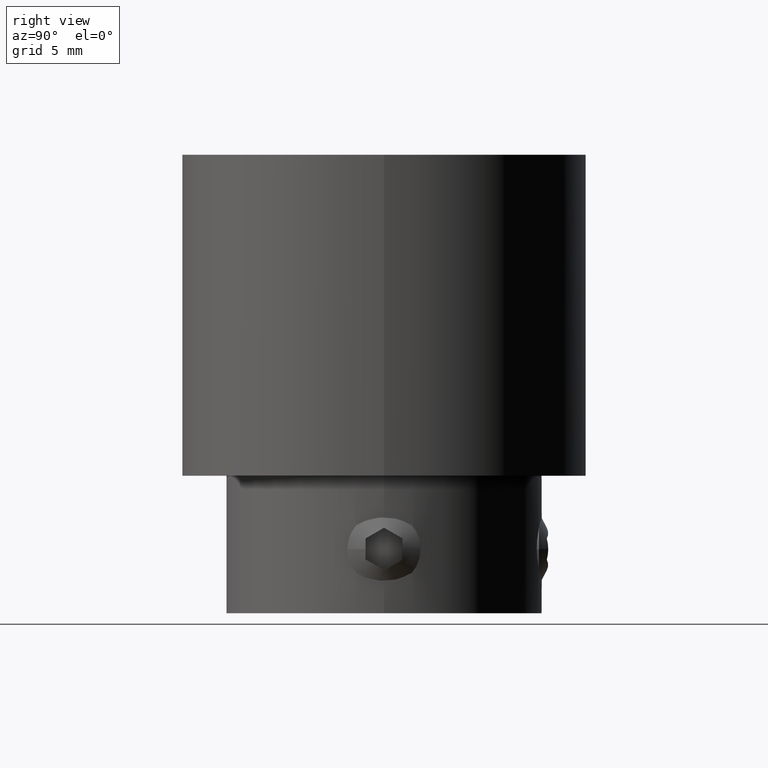
[diagram: clean part render]
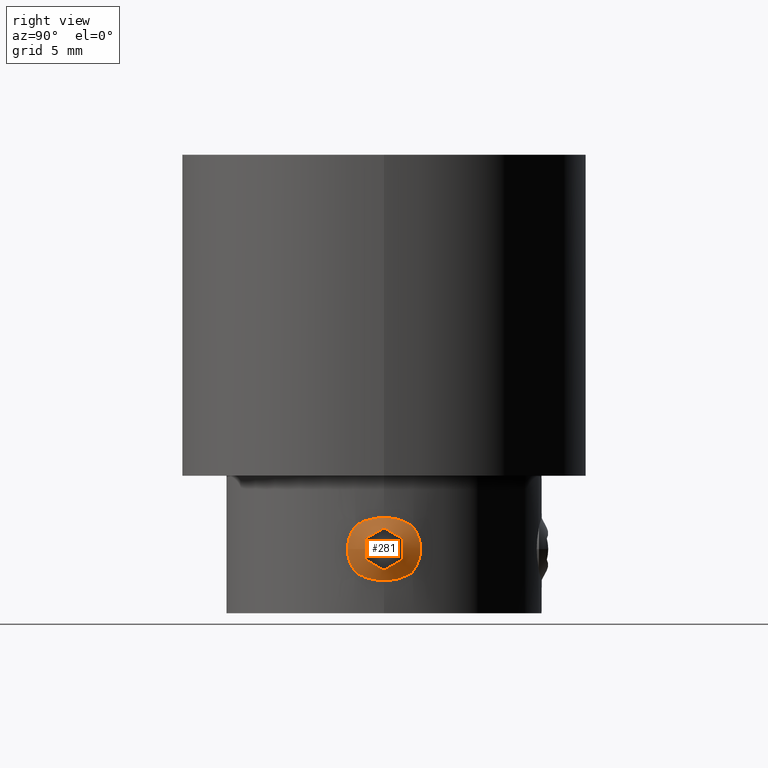
[diagram: same view with one face highlighted and labeled with its STEP entity id]
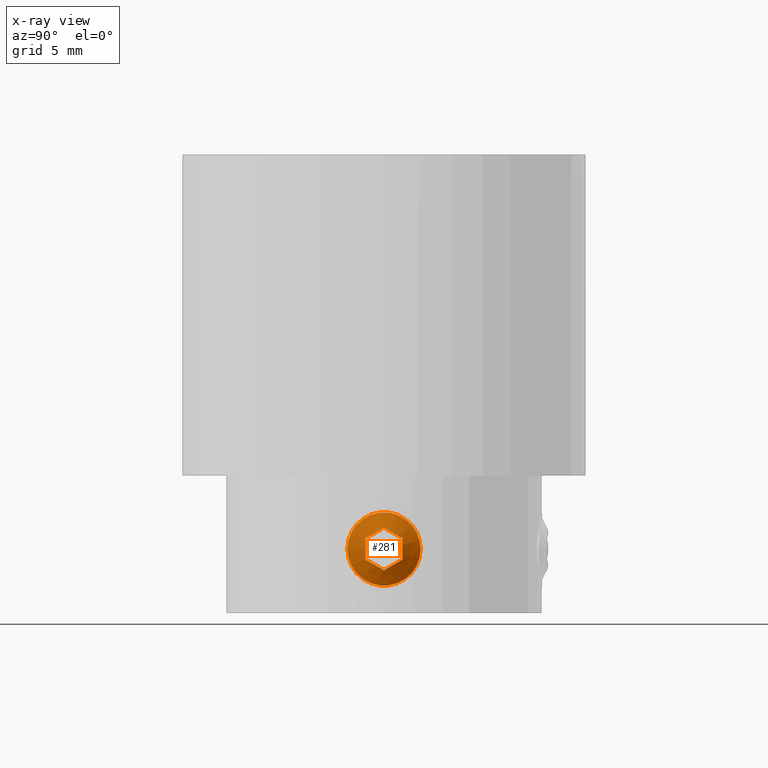
[diagram: x-ray of the same camera — body ghosted, the highlighted face saturated]
A machine part, right view. The second image highlights one B-rep face of the part: STEP entity #281.
The next image is the same camera in x-ray: the body ghosted, the highlighted face saturated — about 0% of this face is hidden behind the body in this view.
In plain terms, the highlighted conical surface has half-angle 63.435 deg.
Its self-contained STEP definition (entity closure, byte-faithful):
#281 = ADVANCED_FACE( '', ( #344, #345 ), #346, .T. );
#344 = FACE_OUTER_BOUND( '', #436, .T. );
#345 = FACE_BOUND( '', #437, .T. );
#346 = CONICAL_SURFACE( '', #438, 2.00000000000000, 1.10714871779409 );
#436 = EDGE_LOOP( '', ( #552 ) );
#437 = EDGE_LOOP( '', ( #553, #554, #555, #556, #557, #558 ) );
#438 = AXIS2_PLACEMENT_3D( '', #559, #560, #561 );
#552 = ORIENTED_EDGE( '', *, *, #718, .F. );
#553 = ORIENTED_EDGE( '', *, *, #719, .T. );
#554 = ORIENTED_EDGE( '', *, *, #720, .T. );
#555 = ORIENTED_EDGE( '', *, *, #721, .T. );
#556 = ORIENTED_EDGE( '', *, *, #722, .T. );
#557 = ORIENTED_EDGE( '', *, *, #723, .T. );
#558 = ORIENTED_EDGE( '', *, *, #724, .T. );
#559 = CARTESIAN_POINT( '', ( 8.46205955850783, 0.000000000000000, -21.5000000000000 ) );
#560 = DIRECTION( '', ( -1.00000000000000, -0.000000000000000, -0.000000000000000 ) );
#561 = DIRECTION( '', ( 0.000000000000000, -1.00000000000000, 0.000000000000000 ) );
#718 = EDGE_CURVE( '', #790, #790, #791, .T. );
#719 = EDGE_CURVE( '', #792, #793, #794, .T. );
#720 = EDGE_CURVE( '', #793, #795, #796, .T. );
#721 = EDGE_CURVE( '', #795, #797, #798, .T. );
#722 = EDGE_CURVE( '', #797, #799, #800, .F. );
#723 = EDGE_CURVE( '', #799, #801, #802, .T. );
#724 = EDGE_CURVE( '', #801, #792, #803, .T. );
#790 = VERTEX_POINT( '', #1102 );
#791 = CIRCLE( '', #1103, 2.00000000000000 );
#792 = VERTEX_POINT( '', #1104 );
#793 = VERTEX_POINT( '', #1105 );
#794 = B_SPLINE_CURVE_WITH_KNOTS( '', 3, ( #1106, #1107, #1108, #1109, #1110, #1111 ), .UNSPECIFIED., .F., .F., ( 4, 2, 4 ), ( 0.00103458309332886, 0.00161823594737898, 0.00220188880142910 ), .UNSPECIFIED. );
#795 = VERTEX_POINT( '', #1112 );
#796 = B_SPLINE_CURVE_WITH_KNOTS( '', 3, ( #1113, #1114, #1115, #1116, #1117, #1118 ), .UNSPECIFIED., .F., .F., ( 4, 2, 4 ), ( 2.34956865817659E-007, 0.000579233426840286, 0.00115823189681475 ), .UNSPECIFIED. );
#797 = VERTEX_POINT( '', #1119 );
#798 = B_SPLINE_CURVE_WITH_KNOTS( '', 3, ( #1120, #1121, #1122, #1123, #1124, #1125 ), .UNSPECIFIED., .F., .F., ( 4, 2, 4 ), ( 2.34956865817798E-007, 0.000579233426840286, 0.00115823189681475 ), .UNSPECIFIED. );
#799 = VERTEX_POINT( '', #1126 );
#800 = B_SPLINE_CURVE_WITH_KNOTS( '', 3, ( #1127, #1128, #1129, #1130, #1131, #1132 ), .UNSPECIFIED., .F., .F., ( 4, 2, 4 ), ( 0.00103458309332886, 0.00161823594737898, 0.00220188880142910 ), .UNSPECIFIED. );
#801 = VERTEX_POINT( '', #1133 );
#802 = B_SPLINE_CURVE_WITH_KNOTS( '', 3, ( #1134, #1135, #1136, #1137, #1138, #1139 ), .UNSPECIFIED., .F., .F., ( 4, 2, 4 ), ( 2.34956865817659E-007, 0.000579233426840285, 0.00115823189681475 ), .UNSPECIFIED. );
#803 = B_SPLINE_CURVE_WITH_KNOTS( '', 3, ( #1140, #1141, #1142, #1143, #1144, #1145 ), .UNSPECIFIED., .F., .F., ( 4, 2, 4 ), ( 2.34956865817826E-007, 0.000579233426840285, 0.00115823189681475 ), .UNSPECIFIED. );
#1102 = CARTESIAN_POINT( '', ( 8.46205955850783, -2.00000000000000, -21.5000000000000 ) );
#1103 = AXIS2_PLACEMENT_3D( '', #1288, #1289, #1290 );
#1104 = CARTESIAN_POINT( '', ( 8.88470928931821, -1.00000000000000, -22.0773502691896 ) );
#1105 = CARTESIAN_POINT( '', ( 8.88470928931821, -1.00000000000000, -20.9226497308104 ) );
#1106 = CARTESIAN_POINT( '', ( 8.88470928931821, -1.00000000000000, -22.0773502691896 ) );
#1107 = CARTESIAN_POINT( '', ( 8.93205678895494, -1.00000000000000, -21.8879602706427 ) );
#1108 = CARTESIAN_POINT( '', ( 8.96203361477331, -1.00000000000000, -21.6938974989258 ) );
#1109 = CARTESIAN_POINT( '', ( 8.96208546638729, -1.00000000000000, -21.3066380760690 ) );
#1110 = CARTESIAN_POINT( '', ( 8.93166433104529, -1.00000000000000, -21.1104698977178 ) );
#1111 = CARTESIAN_POINT( '', ( 8.88470928931842, -1.00000000000000, -20.9226497308103 ) );
#1112 = CARTESIAN_POINT( '', ( 8.88470928931821, 0.000000000000000, -20.3452994616207 ) );
#1113 = CARTESIAN_POINT( '', ( 8.88470928931821, -0.999999999999999, -20.9226497308104 ) );
#1114 = CARTESIAN_POINT( '', ( 8.93213444125038, -0.835714454593607, -20.8277994269460 ) );
#1115 = CARTESIAN_POINT( '', ( 8.96178597336774, -0.670138468625594, -20.7322040868761 ) );
#1116 = CARTESIAN_POINT( '', ( 8.96232920907831, -0.334720282664987, -20.5385503069206 ) );
#1117 = CARTESIAN_POINT( '', ( 8.93231574027657, -0.164913583655278, -20.4405123635371 ) );
#1118 = CARTESIAN_POINT( '', ( 8.88470928931836, 2.38338885500724E-014, -20.3452994616207 ) );
#1119 = CARTESIAN_POINT( '', ( 8.88470928931821, 1.00000000000000, -20.9226497308104 ) );
#1120 = CARTESIAN_POINT( '', ( 8.88470928931821, 7.30856422952781E-016, -20.3452994616207 ) );
#1121 = CARTESIAN_POINT( '', ( 8.93213444125038, 0.164285545406393, -20.4401497654851 ) );
#1122 = CARTESIAN_POINT( '', ( 8.96178597336774, 0.329861531374406, -20.5357451055551 ) );
#1123 = CARTESIAN_POINT( '', ( 8.96232920907831, 0.665279717335013, -20.7293988855105 ) );
#1124 = CARTESIAN_POINT( '', ( 8.93231574027657, 0.835086416344723, -20.8274368288940 ) );
#1125 = CARTESIAN_POINT( '', ( 8.88470928931836, 1.00000000000002, -20.9226497308104 ) );
#1126 = CARTESIAN_POINT( '', ( 8.88470928931821, 1.00000000000000, -22.0773502691896 ) );
#1127 = CARTESIAN_POINT( '', ( 8.88470928931821, 1.00000000000000, -22.0773502691896 ) );
#1128 = CARTESIAN_POINT( '', ( 8.93205678895494, 1.00000000000000, -21.8879602706427 ) );
#1129 = CARTESIAN_POINT( '', ( 8.96203361477331, 1.00000000000000, -21.6938974989258 ) );
#1130 = CARTESIAN_POINT( '', ( 8.96208546638729, 1.00000000000000, -21.3066380760690 ) );
#1131 = CARTESIAN_POINT( '', ( 8.93166433104529, 1.00000000000000, -21.1104698977178 ) );
#1132 = CARTESIAN_POINT( '', ( 8.88470928931842, 1.00000000000000, -20.9226497308103 ) );
#1133 = CARTESIAN_POINT( '', ( 8.88470928931821, -2.59503007864134E-016, -22.6547005383793 ) );
#1134 = CARTESIAN_POINT( '', ( 8.88470928931821, 0.999999999999999, -22.0773502691896 ) );
#1135 = CARTESIAN_POINT( '', ( 8.93213444125038, 0.835714454593607, -22.1722005730540 ) );
#1136 = CARTESIAN_POINT( '', ( 8.96178597336774, 0.670138468625594, -22.2677959131239 ) );
#1137 = CARTESIAN_POINT( '', ( 8.96232920907831, 0.334720282664987, -22.4614496930794 ) );
#1138 = CARTESIAN_POINT( '', ( 8.93231574027657, 0.164913583655278, -22.5594876364629 ) );
#1139 = CARTESIAN_POINT( '', ( 8.88470928931836, -2.40614943962070E-014, -22.6547005383793 ) );
#1140 = CARTESIAN_POINT( '', ( 8.88470928931821, -1.01352258503851E-015, -22.6547005383793 ) );
#1141 = CARTESIAN_POINT( '', ( 8.93213444125038, -0.164285545406393, -22.5598502345149 ) );
#1142 = CARTESIAN_POINT( '', ( 8.96178597336774, -0.329861531374406, -22.4642548944449 ) );
#1143 = CARTESIAN_POINT( '', ( 8.96232920907831, -0.665279717335012, -22.2706011144895 ) );
#1144 = CARTESIAN_POINT( '', ( 8.93231574027657, -0.835086416344722, -22.1725631711060 ) );
#1145 = CARTESIAN_POINT( '', ( 8.88470928931836, -1.00000000000002, -22.0773502691896 ) );
#1288 = CARTESIAN_POINT( '', ( 8.46205955850783, 0.000000000000000, -21.5000000000000 ) );
#1289 = DIRECTION( '', ( -1.00000000000000, -0.000000000000000, 0.000000000000000 ) );
#1290 = DIRECTION( '', ( 0.000000000000000, -1.00000000000000, 0.000000000000000 ) );